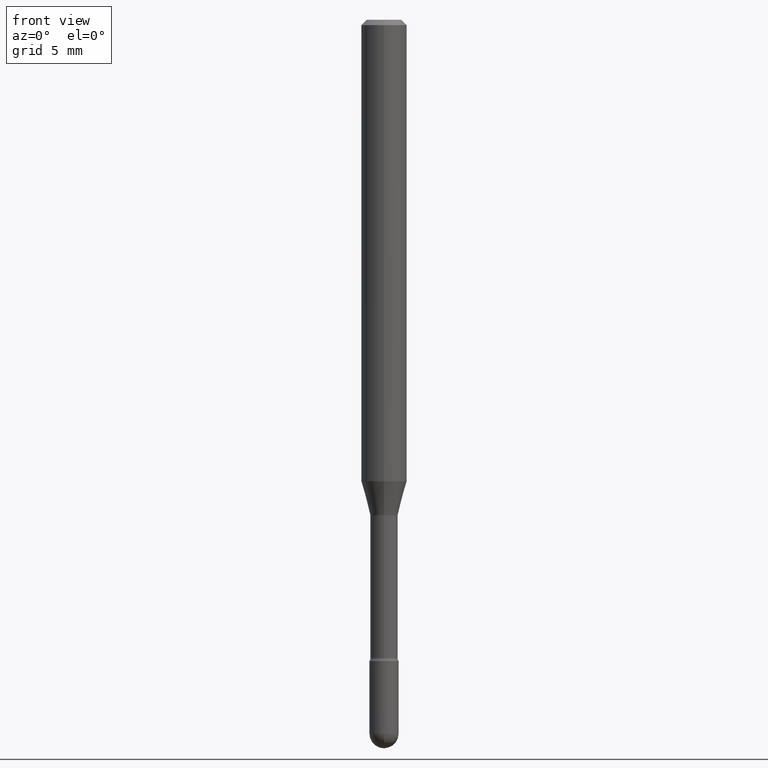
[diagram: clean part render]
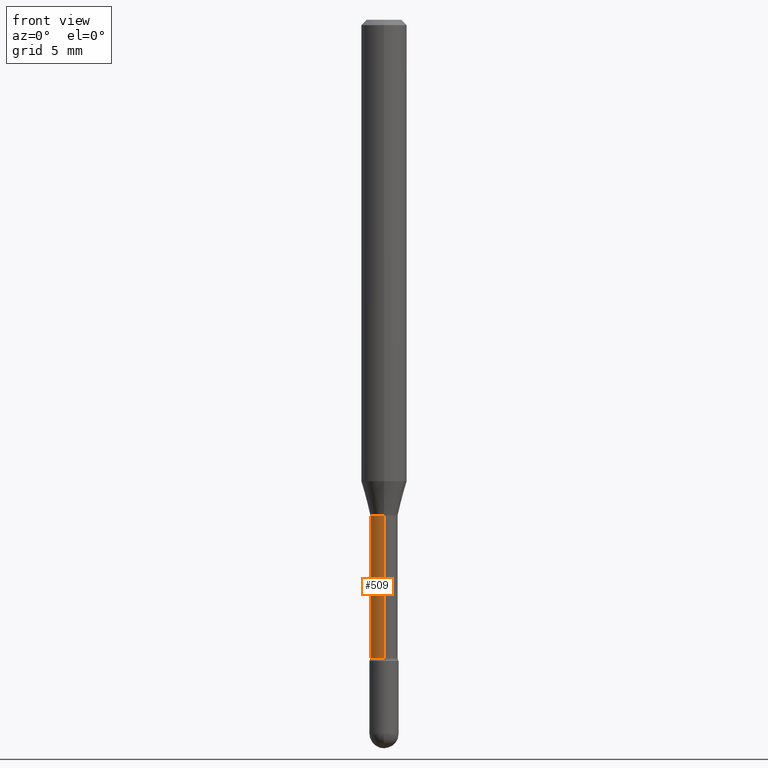
[diagram: same view with one face highlighted and labeled with its STEP entity id]
A machine part, front view. The second image highlights one B-rep face of the part: STEP entity #509.
In plain terms, the highlighted cylindrical surface (edge-blend (fillet) strip) has radius 0.955 mm, axis along (-0, 0, 1).
Its self-contained STEP definition (entity closure, byte-faithful):
#1 = AXIS2_PLACEMENT_3D ( 'NONE', #375, #66, #20 ) ;
#8 = DIRECTION ( 'NONE',  ( -2.445487129029545488E-29, 3.491455099487080109E-15, 1.000000000000000000 ) ) ;
#14 = VECTOR ( 'NONE', #8, 39.37007874015748143 ) ;
#15 = ORIENTED_EDGE ( 'NONE', *, *, #109, .T. ) ;
#20 = DIRECTION ( 'NONE',  ( -6.982962677686267499E-15, -1.000000000000000000, 3.491455099487080898E-15 ) ) ;
#28 = VERTEX_POINT ( 'NONE', #218 ) ;
#66 = DIRECTION ( 'NONE',  ( -2.445487129029545768E-29, 3.491455099487080109E-15, 1.000000000000000000 ) ) ;
#84 = CARTESIAN_POINT ( 'NONE',  ( -2.625593966809703230E-16, -0.03760000000000476156, -1.361974787463811065 ) ) ;
#99 = LINE ( 'NONE', #400, #14 ) ;
#108 = VERTEX_POINT ( 'NONE', #84 ) ;
#109 = EDGE_CURVE ( 'NONE', #483, #175, #561, .T. ) ;
#117 = AXIS2_PLACEMENT_3D ( 'NONE', #380, #322, #279 ) ;
#129 = DIRECTION ( 'NONE',  ( -6.982962677686267499E-15, -1.000000000000000000, 0.000000000000000000 ) ) ;
#135 = DIRECTION ( 'NONE',  ( -2.445487129029545488E-29, 3.491455099487080109E-15, 1.000000000000000000 ) ) ;
#175 = VERTEX_POINT ( 'NONE', #229 ) ;
#178 = EDGE_CURVE ( 'NONE', #175, #108, #99, .T. ) ;
#179 = ORIENTED_EDGE ( 'NONE', *, *, #178, .T. ) ;
#190 = FACE_OUTER_BOUND ( 'NONE', #448, .T. ) ;
#196 = ORIENTED_EDGE ( 'NONE', *, *, #303, .F. ) ;
#216 = DIRECTION ( 'NONE',  ( -2.445487129029545768E-29, 3.491455099487080109E-15, 1.000000000000000000 ) ) ;
#218 = CARTESIAN_POINT ( 'NONE',  ( 2.671640686458407226E-16, 0.03759999999999524833, -1.361974787463811065 ) ) ;
#223 = LINE ( 'NONE', #523, #519 ) ;
#229 = CARTESIAN_POINT ( 'NONE',  ( -2.625593966809612511E-16, -0.03760000000000619097, -1.751861204020249918 ) ) ;
#279 = DIRECTION ( 'NONE',  ( -6.982962677686265922E-15, -1.000000000000000000, 0.000000000000000000 ) ) ;
#281 = CYLINDRICAL_SURFACE ( 'NONE', #1, 0.03760000000000003617 ) ;
#303 = EDGE_CURVE ( 'NONE', #483, #28, #223, .T. ) ;
#322 = DIRECTION ( 'NONE',  ( -2.445487129029545768E-29, 3.491455099487080109E-15, 1.000000000000000000 ) ) ;
#327 = ORIENTED_EDGE ( 'NONE', *, *, #489, .F. ) ;
#347 = AXIS2_PLACEMENT_3D ( 'NONE', #350, #216, #129 ) ;
#350 = CARTESIAN_POINT ( 'NONE',  ( 4.284154026277723862E-29, -6.116544734370077730E-15, -1.751861204020249918 ) ) ;
#375 = CARTESIAN_POINT ( 'NONE',  ( -1.169113584055446105E-44, 1.669184350826100908E-30, 4.780733988912460139E-16 ) ) ;
#380 = CARTESIAN_POINT ( 'NONE',  ( 3.330691812805500619E-29, -4.755273817063354605E-15, -1.361974787463811065 ) ) ;
#400 = CARTESIAN_POINT ( 'NONE',  ( -2.625593966810038989E-16, -0.03760000000000003617, 6.093521106319604609E-16 ) ) ;
#448 = EDGE_LOOP ( 'NONE', ( #196, #15, #179, #327 ) ) ;
#451 = CARTESIAN_POINT ( 'NONE',  ( 2.756905814749619718E-16, 0.03759999999999395770, -1.751861204020249918 ) ) ;
#483 = VERTEX_POINT ( 'NONE', #451 ) ;
#489 = EDGE_CURVE ( 'NONE', #28, #108, #538, .T. ) ;
#509 = ADVANCED_FACE ( 'NONE', ( #190 ), #281, .T. ) ;
#519 = VECTOR ( 'NONE', #135, 39.37007874015748143 ) ;
#523 = CARTESIAN_POINT ( 'NONE',  ( 2.671640686457979269E-16, 0.03760000000000003617, 3.467946871505317148E-16 ) ) ;
#538 = CIRCLE ( 'NONE', #117, 0.03760000000000000842 ) ;
#561 = CIRCLE ( 'NONE', #347, 0.03760000000000007087 ) ;